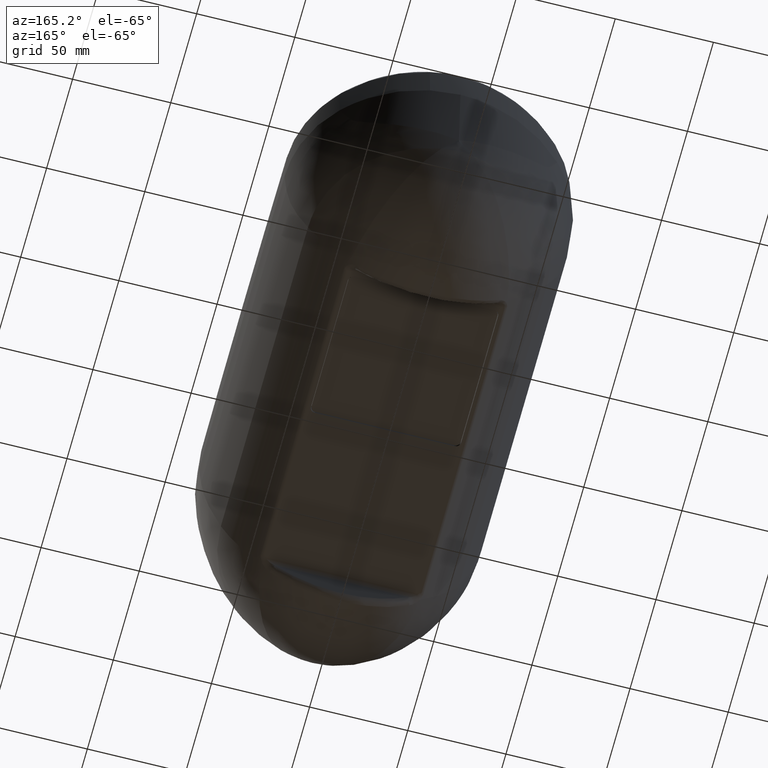
[diagram: clean part render]
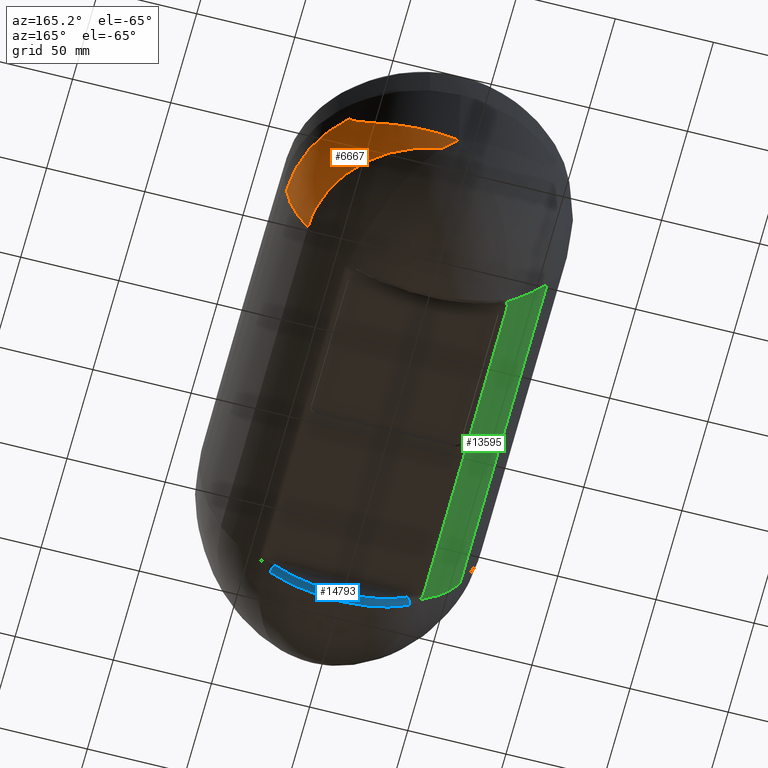
[diagram: same view with three faces highlighted in distinct colors, each labeled with its STEP entity id]
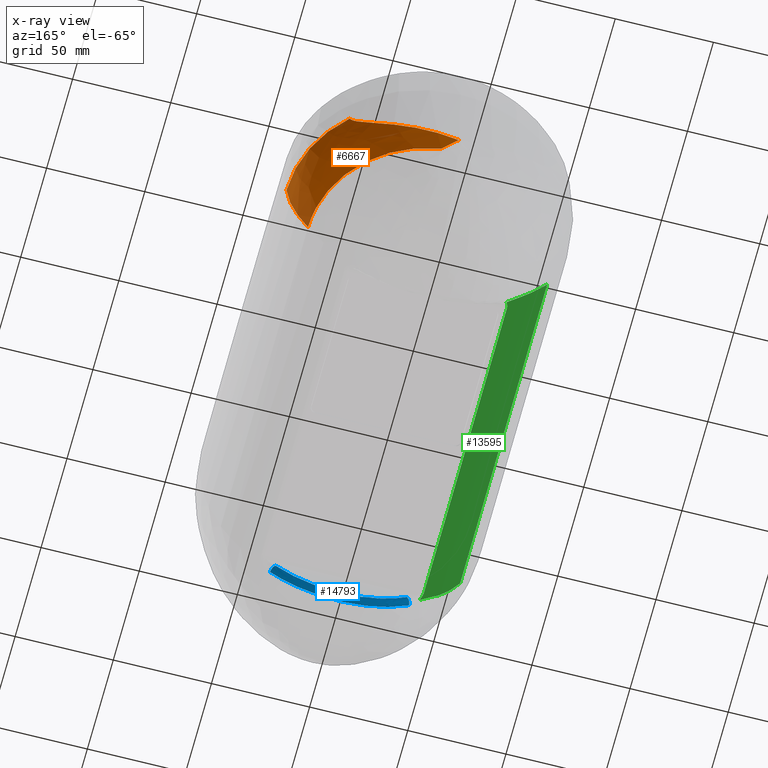
[diagram: x-ray of the same camera — body ghosted, the three highlighted faces saturated]
A machine part, auxiliary view with three faces highlighted in distinct colors.
The next image is the same camera in x-ray (body ghosted, the three faces saturated) — at least one of them is partly hidden behind the body in this view.
Their STEP definitions:

[orange] entity #6667 — the highlighted face is a freeform B-spline surface patch.
#57 = ORIENTED_EDGE ( 'NONE', *, *, #7047, .F. ) ;
#116 = CARTESIAN_POINT ( 'NONE',  ( 17.16873450220270314, 186.2799051753655988, 137.8136529224938158 ) ) ;
#161 = CARTESIAN_POINT ( 'NONE',  ( 36.70021876913366299, 179.5746285073579998, 147.9090190939486149 ) ) ;
#196 = CARTESIAN_POINT ( 'NONE',  ( 71.00981022925452635, 153.3797388543216300, 157.2913176730718305 ) ) ;
#232 = CARTESIAN_POINT ( 'NONE',  ( 46.66650541397430629, 173.7796728239736979, 156.4335529356362429 ) ) ;
#267 = EDGE_CURVE ( 'Defeatured_1_84+Defeatured_1_100+Defeatured_1_99+Defeatured_1_74', #14445, #1055, #5720, .T. ) ;
#272 = CARTESIAN_POINT ( 'NONE',  ( 68.41909123160129980, 158.7746011376136153, 143.1931750610074232 ) ) ;
#307 = CARTESIAN_POINT ( 'NONE',  ( 42.23678981249864250, 176.5808792356348818, 152.0722204217961178 ) ) ;
#390 = CARTESIAN_POINT ( 'NONE',  ( 29.92775204060822247, 182.5243047347703396, 143.8519228116678619 ) ) ;
#467 = CARTESIAN_POINT ( 'NONE',  ( 44.11680217149687877, 175.4378795127589115, 153.7552431653306257 ) ) ;
#560 = CARTESIAN_POINT ( 'NONE',  ( 71.41486747657643264, 152.7488802706376418, 162.8081446720686642 ) ) ;
#716 = CARTESIAN_POINT ( 'NONE',  ( -12.83763338975929535, 186.5459522770986780, 128.1975425206302361 ) ) ;
#884 = CARTESIAN_POINT ( 'NONE',  ( 30.65049512550690736, 193.4459985625936724, 80.18633820112415833 ) ) ;
#946 = CARTESIAN_POINT ( 'NONE',  ( 31.60542280530669856, 177.2716351799642212, 121.7888148081207049 ) ) ;
#1024 = CARTESIAN_POINT ( 'NONE',  ( 46.60434217390933753, 164.8864296971247825, 121.7888148081206623 ) ) ;
#1055 = VERTEX_POINT ( 'NONE', #3271 ) ;
#1223 = CARTESIAN_POINT ( 'NONE',  ( 55.17201272812041424, 177.7803704335496207, 110.6015968472861317 ) ) ;
#1271 = CARTESIAN_POINT ( 'NONE',  ( 67.51844482555469540, 126.3546650136966321, 139.8697258902579961 ) ) ;
#1382 = CARTESIAN_POINT ( 'NONE',  ( 42.53414097025761009, 176.4328875310787055, 152.2376426859413243 ) ) ;
#1426 = CARTESIAN_POINT ( 'NONE',  ( 36.24982020219461276, 179.7940500178897310, 147.6107850392372995 ) ) ;
#1432 = EDGE_CURVE ( 'Defeatured_1_100+Defeatured_1_116+Defeatured_1_115+Defeatured_1_101', #3995, #10713, #14293, .T. ) ;
#1469 = CARTESIAN_POINT ( 'NONE',  ( 60.59804321438010533, 127.4619682899466255, 121.0036763598181011 ) ) ;
#1507 = CARTESIAN_POINT ( 'NONE',  ( 38.37452600336997932, 178.7293576063037506, 149.0621185474327319 ) ) ;
#1580 = CARTESIAN_POINT ( 'NONE',  ( 31.15940167186639798, 182.0434200034016783, 144.5305158333349027 ) ) ;
#1586 = CARTESIAN_POINT ( 'NONE',  ( 60.90865058192770221, 127.4143489423889832, 121.7888176859384828 ) ) ;
#1606 = CARTESIAN_POINT ( 'NONE',  ( 8.320621799689327247, 185.5843390837591187, 121.7888148054847193 ) ) ;
#1660 = CARTESIAN_POINT ( 'NONE',  ( 44.95418670616069079, 174.9046028474916170, 154.5821769349290093 ) ) ;
#1735 = CARTESIAN_POINT ( 'NONE',  ( 36.33687048818266874, 179.7518738740454864, 147.6680919923057616 ) ) ;
#1899 = CARTESIAN_POINT ( 'NONE',  ( 15.91960415757791303, 186.4363209183683239, 137.3597427010759304 ) ) ;
#2237 = CARTESIAN_POINT ( 'NONE',  ( 49.97279135077221923, 171.4740396511940901, 161.2613077493166998 ) ) ;
#2435 = CARTESIAN_POINT ( 'NONE',  ( 24.09854339635410270, 184.5750922347506275, 140.8493777575535262 ) ) ;
#2510 = CARTESIAN_POINT ( 'NONE',  ( 47.17425260179511071, 184.8444342467676336, 98.66499806114813964 ) ) ;
#2547 = CARTESIAN_POINT ( 'NONE',  ( 49.85670447880540479, 171.5562556043261111, 161.0367054651206900 ) ) ;
#2585 = CARTESIAN_POINT ( 'NONE',  ( 50.07989175095790557, 171.3609533482236316, 160.6976552370627473 ) ) ;
#2626 = CARTESIAN_POINT ( 'NONE',  ( 47.60626693753315664, 173.1380599944269534, 157.5977527918207102 ) ) ;
#2665 = CARTESIAN_POINT ( 'NONE',  ( 59.14814502988840417, 127.6159246056106298, 117.9992292698871097 ) ) ;
#2705 = CARTESIAN_POINT ( 'NONE',  ( 42.44137863883254624, 176.4595804056256156, 152.2472789105979984 ) ) ;
#2731 = CARTESIAN_POINT ( 'NONE',  ( 7.333249146439835185E-14, 187.7030265861296812, 131.8029745790232994 ) ) ;
#2738 = CARTESIAN_POINT ( 'NONE',  ( 65.88452917163719746, 163.4453716614846712, 134.1986593037555906 ) ) ;
#2777 = CARTESIAN_POINT ( 'NONE',  ( 36.27595809520007464, 179.7813983250437957, 147.6279747240785412 ) ) ;
#2854 = CARTESIAN_POINT ( 'NONE',  ( 29.79430476489588386, 182.5749923893351365, 143.7796626385284924 ) ) ;
#2938 = CARTESIAN_POINT ( 'NONE',  ( 48.59397052819300455, 172.4500157227422221, 158.9527786816373691 ) ) ;
#3171 = CARTESIAN_POINT ( 'NONE',  ( 7.333249146439835185E-14, 187.7030265861296812, 131.8029745790232994 ) ) ;
#3245 = CARTESIAN_POINT ( 'NONE',  ( 15.38105624700196650, 186.5322553331858160, 137.1458124560444674 ) ) ;
#3254 = CARTESIAN_POINT ( 'NONE',  ( 50.99062218225788712, 159.2300508401498860, 121.7888148081205628 ) ) ;
#3271 = CARTESIAN_POINT ( 'NONE',  ( 8.320621799689327247, 185.5843390837591187, 121.7888148054847193 ) ) ;
#3323 = CARTESIAN_POINT ( 'NONE',  ( 15.63000786043264689, 186.4883171468318039, 137.2444795490099239 ) ) ;
#3330 = CARTESIAN_POINT ( 'NONE',  ( 17.02439258178445414, 183.6416153815463304, 121.7888148081206481 ) ) ;
#3420 = CARTESIAN_POINT ( 'NONE',  ( 49.59015991239924404, 171.7453340079843258, 160.5511880585132189 ) ) ;
#3429 = CARTESIAN_POINT ( 'NONE',  ( 71.42857142857123165, 125.6666049739822739, 162.9999999999949978 ) ) ;
#3697 = CARTESIAN_POINT ( 'NONE',  ( 27.29194627442340249, 183.5415140037296737, 142.4092439265871235 ) ) ;
#3736 = CARTESIAN_POINT ( 'NONE',  ( 50.73208579701179843, 170.9409819235802956, 162.9152390018462597 ) ) ;
#3803 = CARTESIAN_POINT ( 'NONE',  ( 48.55830336586237195, 172.4750887771693044, 158.9006230407084956 ) ) ;
#3880 = CARTESIAN_POINT ( 'NONE',  ( 45.04770409560386923, 174.8444715272655117, 154.6770085291250609 ) ) ;
#3919 = CARTESIAN_POINT ( 'NONE',  ( 13.43236609899430611, 186.9522743776976483, 136.3377415382447282 ) ) ;
#3961 = CARTESIAN_POINT ( 'NONE',  ( 44.99787507170157141, 174.8765284200966619, 154.6264063535724915 ) ) ;
#3995 = VERTEX_POINT ( 'NONE', #12022 ) ;
#4030 = CARTESIAN_POINT ( 'NONE',  ( 48.20665157576791415, 172.7217222970899684, 158.3975876959782454 ) ) ;
#4107 = CARTESIAN_POINT ( 'NONE',  ( 29.69869708855287271, 182.6111609331265981, 143.7280191964380833 ) ) ;
#4119 = CARTESIAN_POINT ( 'NONE',  ( 61.25489697169749093, 127.3739163240166476, 122.5466733300846869 ) ) ;
#4678 = CARTESIAN_POINT ( 'NONE',  ( 58.05657435785962406, 144.9640745294581734, 121.7888148081205628 ) ) ;
#4757 = CARTESIAN_POINT ( 'NONE',  ( 10.08256595400358613, 185.3067648900206734, 121.7888148081206054 ) ) ;
#4827 = DIRECTION ( 'NONE',  ( -0.9974586998307348740, 0.0000000000000000000, 0.07124704998791103749 ) ) ;
#4850 = CARTESIAN_POINT ( 'NONE',  ( 71.42857142857123165, 125.6666049739822739, 162.9999999999949978 ) ) ;
#4983 = EDGE_CURVE ( 'Defeatured_1_100+Defeatured_1_101+Defeatured_1_116+Defeatured_1_85', #10713, #12688, #9026, .T. ) ;
#4999 = CARTESIAN_POINT ( 'NONE',  ( 37.17902757184661766, 179.3380844048657536, 148.2308479818809701 ) ) ;
#5034 = CARTESIAN_POINT ( 'NONE',  ( 67.67950341839531347, 160.2174122902346767, 140.2554148641884524 ) ) ;
#5073 = CARTESIAN_POINT ( 'NONE',  ( 48.63464813290100608, 172.4214054275098249, 159.0125615376302619 ) ) ;
#5153 = CARTESIAN_POINT ( 'NONE',  ( 37.58116637253532133, 179.1351483010918457, 148.5075628739639626 ) ) ;
#5230 = CARTESIAN_POINT ( 'NONE',  ( 29.72740571489134354, 182.6003137891588324, 143.7435148765300141 ) ) ;
#5307 = CARTESIAN_POINT ( 'NONE',  ( 36.23238769775648649, 179.8024841076845064, 147.5993260120747834 ) ) ;
#5400 = CARTESIAN_POINT ( 'NONE',  ( 47.77235304804080585, 173.1347374335826146, 157.2876921142403148 ) ) ;
#5696 = CARTESIAN_POINT ( 'NONE',  ( 21.71979212434760953, 185.1620988758757846, 139.8050787990402739 ) ) ;
#5720 = B_SPLINE_CURVE_WITH_KNOTS ( 'NONE', 3,
 ( #2731, #9901, #14732, #1606 ),
 .UNSPECIFIED., .F., .F.,
 ( 4, 4 ),
 ( 0.0000000000000000000, 0.1715839672696508056 ),
 .UNSPECIFIED. ) ;
#5776 = CARTESIAN_POINT ( 'NONE',  ( 57.46544466909824678, 146.6499654445194381, 121.7888148081205912 ) ) ;
#5870 = CARTESIAN_POINT ( 'NONE',  ( 49.25769430435477858, 171.9812671709381675, 159.9787832175579183 ) ) ;
#6024 = CARTESIAN_POINT ( 'NONE',  ( 8.320621799689327247, 185.5843390837591187, 121.7888148054847193 ) ) ;
#6070 = CARTESIAN_POINT ( 'NONE',  ( 33.13404088627580535, 181.2881622665116481, 145.6057532075287213 ) ) ;
#6145 = CARTESIAN_POINT ( 'NONE',  ( 44.54910410794700937, 127.6185406703086471, 95.50196552895609159 ) ) ;
#6230 = CARTESIAN_POINT ( 'NONE',  ( 40.48965932227040554, 177.6348567825116334, 150.5652163402212409 ) ) ;
#6267 = CARTESIAN_POINT ( 'NONE',  ( 32.02829301122999794, 181.6913828338914811, 145.0212240322242110 ) ) ;
#6307 = CARTESIAN_POINT ( 'NONE',  ( 56.00180937430951644, 127.8449498914186506, 112.1190389907761045 ) ) ;
#6348 = CARTESIAN_POINT ( 'NONE',  ( 47.45307846892482928, 173.2433850252533603, 157.4018865357355139 ) ) ;
#6421 = CARTESIAN_POINT ( 'NONE',  ( 44.96218855732081465, 174.8994630048732120, 154.5902685028248413 ) ) ;
#6500 = CARTESIAN_POINT ( 'NONE',  ( 35.25342314504954544, 180.2756873835429303, 146.9564337515907368 ) ) ;
#6574 = CARTESIAN_POINT ( 'NONE',  ( 45.14689645194145839, 174.7805404929574422, 154.7782452335213748 ) ) ;
#6593 = CARTESIAN_POINT ( 'NONE',  ( 50.66032537606570685, 127.9470659582256360, 103.6190837426011058 ) ) ;
#6613 = ORIENTED_EDGE ( 'NONE', *, *, #267, .F. ) ;
#6667 = ADVANCED_FACE ( 'Defeatured_1_100', ( #7340 ), #13027, .T. ) ;
#6736 = ORIENTED_EDGE ( 'NONE', *, *, #4983, .T. ) ;
#6742 = CARTESIAN_POINT ( 'NONE',  ( 15.35827923907807602, 186.5362408837727912, 137.1368041230658150 ) ) ;
#7047 = EDGE_CURVE ( 'Defeatured_1_115+Defeatured_1_100+Defeatured_1_116+Defeatured_1_99', #3995, #14445, #11240, .T. ) ;
#7214 = CARTESIAN_POINT ( 'NONE',  ( 57.15092397474712271, 147.4830621802008466, 121.7888148081206481 ) ) ;
#7266 = CARTESIAN_POINT ( 'NONE',  ( 39.90406387601041160, 189.4935852546356045, 89.74389981772009151 ) ) ;
#7310 = CARTESIAN_POINT ( 'NONE',  ( 69.89674611601769527, 125.8672935264826265, 149.6017762305458234 ) ) ;
#7340 = FACE_OUTER_BOUND ( 'NONE', #13782, .T. ) ;
#7378 = CARTESIAN_POINT ( 'NONE',  ( 49.71498708835147795, 171.6567654850285010, 160.7751381265503881 ) ) ;
#7416 = CARTESIAN_POINT ( 'NONE',  ( 69.89674611601769527, 125.8672935264826265, 149.6017762305458234 ) ) ;
#7462 = CARTESIAN_POINT ( 'NONE',  ( 47.44017607586149410, 173.2522411284294321, 157.3855062366996833 ) ) ;
#7539 = CARTESIAN_POINT ( 'NONE',  ( 42.33153027045825212, 176.5247926312507900, 152.1530872606254547 ) ) ;
#7613 = CARTESIAN_POINT ( 'NONE',  ( 48.87339494457030753, 172.2531716612204491, 159.3702697794027472 ) ) ;
#7694 = CARTESIAN_POINT ( 'NONE',  ( 47.43302219181757806, 173.2571502080473920, 157.3764338411962456 ) ) ;
#7777 = CARTESIAN_POINT ( 'NONE',  ( 36.45839135068534631, 179.6928102155401348, 147.7483585025289301 ) ) ;
#7924 = CARTESIAN_POINT ( 'NONE',  ( 17.95782077442126834, 186.0395845241623647, 138.1883872790900796 ) ) ;
#8168 = CARTESIAN_POINT ( 'NONE',  ( 15.42259030424184907, 186.5249690456952010, 137.1622494189592203 ) ) ;
#8273 = CARTESIAN_POINT ( 'NONE',  ( 49.57962337903342132, 171.7528107670858049, 160.5325355825875704 ) ) ;
#8338 = CARTESIAN_POINT ( 'NONE',  ( 15.31653920171187977, 184.1245451477899735, 121.7888148081205344 ) ) ;
#8543 = CARTESIAN_POINT ( 'NONE',  ( 1.112362122112645402, 187.8513583469206480, 132.0977994787148475 ) ) ;
#8579 = CARTESIAN_POINT ( 'NONE',  ( 50.33840317934961917, 171.2159718791400280, 162.0115718070729258 ) ) ;
#8619 = CARTESIAN_POINT ( 'NONE',  ( 51.14620054612350941, 170.6632551813156056, 164.1283507020978050 ) ) ;
#8662 = CARTESIAN_POINT ( 'NONE',  ( 48.38457707577247646, 172.5971733405503414, 158.6473731521189166 ) ) ;
#8698 = CARTESIAN_POINT ( 'NONE',  ( 64.81582631037731801, 165.2482622896216071, 131.0585790966005106 ) ) ;
#8740 = CARTESIAN_POINT ( 'NONE',  ( 48.56476090369297793, 172.4705502033403661, 158.9100480898729018 ) ) ;
#8822 = CARTESIAN_POINT ( 'NONE',  ( 48.71524244496419698, 172.3646731393792209, 159.1319860778025088 ) ) ;
#8894 = CARTESIAN_POINT ( 'NONE',  ( 44.54494152333062829, 175.1674017694346333, 154.1686501883742721 ) ) ;
#8974 = CARTESIAN_POINT ( 'NONE',  ( 47.47240324845135007, 173.2301174585445551, 157.4264447536860132 ) ) ;
#9026 = B_SPLINE_CURVE_WITH_KNOTS ( 'NONE', 3,
 ( #3429, #9722, #7310, #1271, #11871, #11207, #11135, #11363, #4119, #1586 ),
 .UNSPECIFIED., .F., .F.,
 ( 4, 2, 2, 2, 4 ),
 ( 0.0000000000000000000, 0.2515006295357943289, 0.3772509443036915489, 0.5030012590715886578, 0.5343711062231838449 ),
 .UNSPECIFIED. ) ;
#9137 = CARTESIAN_POINT ( 'NONE',  ( 5.389253985391023072, 187.8179271703508277, 133.4497354674256258 ) ) ;
#9312 = CARTESIAN_POINT ( 'NONE',  ( 34.64916115007592623, 175.3745398576801335, 121.7888148081205770 ) ) ;
#9381 = CARTESIAN_POINT ( 'NONE',  ( 11.58104943872571546, 125.6666049734167245, 167.2748229992737663 ) ) ;
#9389 = CARTESIAN_POINT ( 'NONE',  ( 7.333249146439835185E-14, 187.7030265861296812, 131.8029745790232994 ) ) ;
#9451 = CARTESIAN_POINT ( 'NONE',  ( 60.90865058192770221, 127.4143489423889832, 121.7888176859384828 ) ) ;
#9543 = CARTESIAN_POINT ( 'NONE',  ( 55.48567614315565066, 151.6004114551206783, 121.7888148081207191 ) ) ;
#9626 = CARTESIAN_POINT ( 'NONE',  ( 59.52982061571764660, 139.7942731488212189, 121.7888148081206197 ) ) ;
#9640 = ORIENTED_EDGE ( 'NONE', *, *, #12918, .F. ) ;
#9722 = CARTESIAN_POINT ( 'NONE',  ( 70.94436141951059938, 125.6425330173845936, 156.2210598731479081 ) ) ;
#9752 = CARTESIAN_POINT ( 'NONE',  ( 35.79168534232671561, 180.0625976381126350, 147.2494037136869451 ) ) ;
#9870 = CARTESIAN_POINT ( 'NONE',  ( 34.22812952637918471, 180.7478049812010852, 146.3169786827609471 ) ) ;
#9901 = CARTESIAN_POINT ( 'NONE',  ( 2.786728205908099110, 187.4733793705974279, 128.5224723736782266 ) ) ;
#9912 = CARTESIAN_POINT ( 'NONE',  ( 64.45717302571880225, 126.9216870391166339, 130.2969368327252937 ) ) ;
#9949 = CARTESIAN_POINT ( 'NONE',  ( 44.97646982654708125, 174.8902865783637708, 154.6047231796659673 ) ) ;
#9988 = CARTESIAN_POINT ( 'NONE',  ( 54.30538898138550508, 127.9202771792916309, 109.2433129450401026 ) ) ;
#10031 = CARTESIAN_POINT ( 'NONE',  ( 42.25261386737962965, 176.5715204786361596, 152.0857058367066941 ) ) ;
#10108 = CARTESIAN_POINT ( 'NONE',  ( 48.57645564361937573, 172.4623294621588343, 158.9271423414444087 ) ) ;
#10176 = CARTESIAN_POINT ( 'NONE',  ( 32.59068684728737963, 181.4555537227965090, 145.3465656648918127 ) ) ;
#10272 = ORIENTED_EDGE ( 'NONE', *, *, #1432, .T. ) ;
#10274 = CARTESIAN_POINT ( 'NONE',  ( 67.51844482555469540, 126.3546650136966321, 139.8697258902579961 ) ) ;
#10713 = VERTEX_POINT ( 'NONE', #4850 ) ;
#10725 = CARTESIAN_POINT ( 'NONE',  ( 32.37522912398689812, 176.8087690273798387, 121.7888148081206339 ) ) ;
#10812 = CARTESIAN_POINT ( 'NONE',  ( 60.55805325933997807, 134.5546111918678491, 121.7888148081205628 ) ) ;
#10888 = CARTESIAN_POINT ( 'NONE',  ( 29.27386520409706705, 178.5860138788926577, 121.7888148081205628 ) ) ;
#10934 = CARTESIAN_POINT ( 'NONE',  ( 5.404108163809045351, 187.7369510837076518, 133.4798682755353241 ) ) ;
#11014 = CARTESIAN_POINT ( 'NONE',  ( 66.59019043919519731, 126.5413248899736089, 136.6586028727713256 ) ) ;
#11093 = CARTESIAN_POINT ( 'NONE',  ( 71.42857142857140218, 125.6666049734165824, 162.9999999999990052 ) ) ;
#11130 = CARTESIAN_POINT ( 'NONE',  ( 46.04704550520542483, 174.1921500333493213, 155.7351867054905199 ) ) ;
#11135 = CARTESIAN_POINT ( 'NONE',  ( 63.25052481418590133, 127.1153274453266420, 127.1458436500381168 ) ) ;
#11164 = CARTESIAN_POINT ( 'NONE',  ( 57.25559231260780990, 175.4963531510216512, 114.2739237200841131 ) ) ;
#11201 = CARTESIAN_POINT ( 'NONE',  ( 36.22245621288879391, 179.8072866222074992, 147.5928012103275364 ) ) ;
#11207 = CARTESIAN_POINT ( 'NONE',  ( 64.45717302571880225, 126.9216870391166339, 130.2969368327252937 ) ) ;
#11240 = B_SPLINE_CURVE_WITH_KNOTS ( 'NONE', 3,
 ( #14552, #14629, #3736, #8579, #13442, #2237, #2547, #7378, #12255, #14321, #3420, #8273, #13132, #11939, #5870, #15586, #7613, #8822, #5073, #2938, #10108, #8740, #3803, #8662, #4030, #14852, #13513, #2626, #12332, #8974, #6348, #7462, #7694, #14703, #232, #11130, #12564, #13597, #6574, #3880, #3961, #9949, #6421, #1660, #8894, #467, #14772, #13746, #12482, #2705, #7539, #12409, #10031, #307, #12639, #11356, #13667, #14924, #1507, #5153, #4999, #161, #7777, #1735, #2777, #1426, #5307, #11201, #6500, #9870, #10176, #6267, #1580, #14996, #11283, #390, #2854, #5230, #4107, #13828, #14144, #14219, #12797, #5696, #12877, #14059, #7924, #12715, #11599, #1899, #3323, #15236, #8168, #3245, #6742, #15319, #9137, #3171 ),
 .UNSPECIFIED., .F., .F.,
 ( 4, 2, 2, 1, 1, 1, 1, 2, 2, 2, 1, 1, 1, 1, 2, 2, 2, 1, 1, 1, 1, 2, 2, 2, 1, 1, 1, 1, 1, 2, 2, 2, 1, 1, 1, 1, 1, 2, 2, 2, 2, 1, 1, 1, 1, 1, 2, 2, 2, 2, 1, 1, 1, 1, 1, 2, 2, 2, 2, 2, 1, 1, 1, 1, 2, 2, 4 ),
 ( 0.0000000000000000000, 0.03125000000000555112, 0.04687500000000787564, 0.05468750000000851402, 0.05859375000000895811, 0.06054687500000944383, 0.06152343750000968670, 0.06201171875000973527, 0.06250000000000978384, 0.07812500000000124900, 0.08593749999999777955, 0.08984374999999661382, 0.09179687499999578115, 0.09277343749999565625, 0.09326171874999583666, 0.09374999999999600320, 0.1093749999999709399, 0.1171874999999579364, 0.1210937499999512196, 0.1230468749999471811, 0.1240234374999447248, 0.1245117187499442668, 0.1249999999999437950, 0.1562499999999536204, 0.1718749999999580891, 0.1796874999999605871, 0.1835937499999620859, 0.1855468749999628075, 0.1865234374999624467, 0.1870117187499622524, 0.1874999999999620581, 0.2187499999999547862, 0.2343749999999514277, 0.2421874999999493738, 0.2460937499999482081, 0.2480468749999472644, 0.2490234374999471811, 0.2495117187499470146, 0.2499999999999468481, 0.3124999999999322764, 0.3437499999999250044, 0.3593749999999207856, 0.3671874999999193423, 0.3710937499999187317, 0.3730468749999180655, 0.3740234374999176770, 0.3745117187499174549, 0.3749999999999172884, 0.4374999999999690248, 0.4687499999999946709, 0.4843750000000079936, 0.4921875000000149325, 0.4960937500000187073, 0.4980468750000206501, 0.4990234375000218714, 0.4995117187500219824, 0.5000000000000220934, 0.6249999999999859002, 0.6874999999999674705, 0.7187499999999583666, 0.7343749999999539257, 0.7421874999999519273, 0.7460937499999509281, 0.7480468749999502620, 0.7490234374999500400, 0.7499999999999499289, 1.000000000000000000 ),
 .UNSPECIFIED. ) ;
#11244 = AXIS2_PLACEMENT_3D ( 'NONE', #9381, #13194, #4827 ) ;
#11283 = CARTESIAN_POINT ( 'NONE',  ( 30.19324454257600010, 182.4227558616601073, 143.9963013450465041 ) ) ;
#11356 = CARTESIAN_POINT ( 'NONE',  ( 41.33227902803047726, 177.1154275666830813, 151.3023274098717366 ) ) ;
#11363 = CARTESIAN_POINT ( 'NONE',  ( 61.59343815313383885, 127.3318846194980409, 123.3086432384239259 ) ) ;
#11455 = CARTESIAN_POINT ( 'NONE',  ( -8.055865640240494230, 187.2538948935716689, 129.4425612363292544 ) ) ;
#11599 = CARTESIAN_POINT ( 'NONE',  ( 16.49604968054320508, 186.3299753397031679, 137.5907576214919459 ) ) ;
#11851 = CARTESIAN_POINT ( 'NONE',  ( 40.35430993419052470, 171.1499784477668413, 121.7888148081205628 ) ) ;
#11871 = CARTESIAN_POINT ( 'NONE',  ( 66.59019043919519731, 126.5413248899736089, 136.6586028727713256 ) ) ;
#11927 = CARTESIAN_POINT ( 'NONE',  ( 11.84872771158779337, 184.9568774892029808, 121.7888148081205770 ) ) ;
#11939 = CARTESIAN_POINT ( 'NONE',  ( 49.41785434480624417, 171.8676043028438585, 160.2472091571501380 ) ) ;
#12007 = CARTESIAN_POINT ( 'NONE',  ( 59.10278490336092005, 141.5281082812221882, 121.7888148081206339 ) ) ;
#12022 = CARTESIAN_POINT ( 'NONE',  ( 51.14620054612323941, 170.6632551813155487, 164.1283507020977765 ) ) ;
#12143 = CARTESIAN_POINT ( 'NONE',  ( 63.25052481418590133, 127.1153274453266420, 127.1458436500381168 ) ) ;
#12213 = CARTESIAN_POINT ( 'NONE',  ( 42.37802323590721443, 127.3885538846926408, 92.93846549772410981 ) ) ;
#12255 = CARTESIAN_POINT ( 'NONE',  ( 49.64255028243015744, 171.7081589036503999, 160.6444722752199539 ) ) ;
#12293 = CARTESIAN_POINT ( 'NONE',  ( 70.24465998701199965, 155.0933312293755648, 151.7332072851049531 ) ) ;
#12332 = CARTESIAN_POINT ( 'NONE',  ( 47.51729285881210529, 173.1992760989745648, 157.4836616354507726 ) ) ;
#12369 = CARTESIAN_POINT ( 'NONE',  ( 60.79775363323240356, 171.1626057194825705, 121.2645210896261148 ) ) ;
#12409 = CARTESIAN_POINT ( 'NONE',  ( 42.27633021313891248, 176.5574887109950737, 152.1059295421922855 ) ) ;
#12447 = CARTESIAN_POINT ( 'NONE',  ( 50.15260285291000741, 182.4461610913456298, 102.8137544521511018 ) ) ;
#12482 = CARTESIAN_POINT ( 'NONE',  ( 42.65887306433747028, 176.3298843473435511, 152.4351664575756047 ) ) ;
#12564 = CARTESIAN_POINT ( 'NONE',  ( 45.72907118507820456, 174.4021717033298842, 155.3865643329210116 ) ) ;
#12639 = CARTESIAN_POINT ( 'NONE',  ( 42.22788872842743757, 176.5861413601398624, 152.0646399903084784 ) ) ;
#12688 = VERTEX_POINT ( 'NONE', #13393 ) ;
#12715 = CARTESIAN_POINT ( 'NONE',  ( 16.98542016698340618, 186.2348668220962793, 137.7896025310035952 ) ) ;
#12797 = CARTESIAN_POINT ( 'NONE',  ( 25.30102597029447509, 184.1670747655010985, 141.4507298878273502 ) ) ;
#12877 = CARTESIAN_POINT ( 'NONE',  ( 20.49144198479267587, 185.4732028493608880, 139.2619174490875764 ) ) ;
#12918 = EDGE_CURVE ( 'Defeatured_1_85+Defeatured_1_100+Defeatured_1_74+Defeatured_1_86', #1055, #12688, #14940, .T. ) ;
#12961 = CARTESIAN_POINT ( 'NONE',  ( 60.90868392404704679, 131.0109760989092251, 121.7888148081206481 ) ) ;
#12975 = CARTESIAN_POINT ( 'NONE',  ( -17.76458301565339326, 185.3034061309546701, 127.0470198292941149 ) ) ;
#13027 =( BOUNDED_SURFACE ( )  B_SPLINE_SURFACE ( 3, 2, ( 
 ( #11093, #560, #8619 ),
 ( #14739, #196, #2585 ),
 ( #7416, #12293, #5400 ),
 ( #10274, #272, #1382 ),
 ( #11014, #5034, #6230 ),
 ( #9912, #2738, #9752 ),
 ( #12143, #8698, #6070 ),
 ( #1469, #13552, #3697 ),
 ( #2665, #12369, #2435 ),
 ( #6307, #11164, #116 ),
 ( #9988, #1223, #3919 ),
 ( #6593, #12447, #10934 ),
 ( #14590, #2510, #8543 ),
 ( #6145, #7266, #11455 ),
 ( #12213, #15256, #716 ),
 ( #15501, #884, #12975 ) ),
 .UNSPECIFIED., .F., .F., .F. ) 
 B_SPLINE_SURFACE_WITH_KNOTS ( ( 4, 2, 2, 2, 2, 2, 2, 4 ),
 ( 3, 3 ),
 ( 0.0000000000000000000, 0.2500000000000000000, 0.3750000000000000000, 0.5000000000000000000, 0.6250000000000000000, 0.7500000000000000000, 0.8750000000000000000, 1.000000000000000000 ),
 ( 0.0000000000000000000, 1.000000000000000000 ),
 .UNSPECIFIED. ) 
 GEOMETRIC_REPRESENTATION_ITEM ( )  RATIONAL_B_SPLINE_SURFACE ( (
 ( 1.000000000000000000, 0.9114493085704780118, 1.000000000000000000),
 ( 1.000000000000000000, 0.9077723167509239577, 1.000000000000000000),
 ( 1.000000000000000000, 0.8989471047261099468, 1.000000000000000000),
 ( 1.000000000000000000, 0.8787564360949460252, 1.000000000000000000),
 ( 1.000000000000000000, 0.8708633762317450344, 1.000000000000000000),
 ( 1.000000000000000000, 0.8528193201276059732, 1.000000000000000000),
 ( 1.000000000000000000, 0.8426527738148840152, 1.000000000000000000),
 ( 1.000000000000000000, 0.8205255037794220163, 1.000000000000000000),
 ( 1.000000000000000000, 0.8085293876270569502, 1.000000000000000000),
 ( 1.000000000000000000, 0.7828744421357920480, 1.000000000000000000),
 ( 1.000000000000000000, 0.7692144249613509510, 1.000000000000000000),
 ( 1.000000000000000000, 0.7404585064003720296, 1.000000000000000000),
 ( 1.000000000000000000, 0.7253610393099210185, 1.000000000000000000),
 ( 1.000000000000000000, 0.6940242223807110422, 1.000000000000000000),
 ( 1.000000000000000000, 0.6781158737509359602, 1.000000000000000000),
 ( 1.000000000000000000, 0.6623369879177010144, 1.000000000000000000) ) ) 
 REPRESENTATION_ITEM ( '' )  SURFACE ( )  );
#13036 = CARTESIAN_POINT ( 'NONE',  ( 36.11353267821158397, 174.3608670707387489, 121.7888148081205628 ) ) ;
#13132 = CARTESIAN_POINT ( 'NONE',  ( 49.57378367287032006, 171.7569546815545891, 160.5222188484561059 ) ) ;
#13194 = DIRECTION ( 'NONE',  ( -0.07124525315353251453, -0.007102035523964675065, -0.9974335441494364130 ) ) ;
#13197 = CARTESIAN_POINT ( 'NONE',  ( 47.76018040026227141, 163.5287136386105544, 121.7888148081206054 ) ) ;
#13274 = CARTESIAN_POINT ( 'NONE',  ( 49.96145358524513824, 160.6901716297154508, 121.7888148081206481 ) ) ;
#13393 = CARTESIAN_POINT ( 'NONE',  ( 60.90865058192770221, 127.4143489423889832, 121.7888176859384828 ) ) ;
#13442 = CARTESIAN_POINT ( 'NONE',  ( 50.19784991116143402, 171.3149356563567380, 161.7110422823534464 ) ) ;
#13513 = CARTESIAN_POINT ( 'NONE',  ( 47.78100267780794042, 173.0175055746416888, 157.8245638835856823 ) ) ;
#13552 = CARTESIAN_POINT ( 'NONE',  ( 62.28235762379159723, 169.0952721985385665, 124.6080820244811349 ) ) ;
#13597 = CARTESIAN_POINT ( 'NONE',  ( 45.34342240184212613, 174.6534161588481879, 154.9808475849355318 ) ) ;
#13667 = CARTESIAN_POINT ( 'NONE',  ( 40.38914332412177544, 177.6505342682665400, 150.5512654539032553 ) ) ;
#13746 = CARTESIAN_POINT ( 'NONE',  ( 43.08508996627536192, 176.0734742988247206, 152.8089537499418782 ) ) ;
#13782 = EDGE_LOOP ( 'NONE', ( #9640, #6613, #57, #10272, #6736 ) ) ;
#13828 = CARTESIAN_POINT ( 'NONE',  ( 29.67954964584474098, 182.6183912682368202, 143.7176879031903525 ) ) ;
#14059 = CARTESIAN_POINT ( 'NONE',  ( 18.59763252196630390, 185.9026433354336234, 138.4557036347361532 ) ) ;
#14144 = CARTESIAN_POINT ( 'NONE',  ( 29.66863409817853636, 182.6225104084198563, 143.7118006013184868 ) ) ;
#14152 = CARTESIAN_POINT ( 'NONE',  ( 25.33133443252458861, 180.6315942817273310, 121.7888148081206197 ) ) ;
#14219 = CARTESIAN_POINT ( 'NONE',  ( 27.54981464172076144, 183.4216645649190696, 142.5693711330117139 ) ) ;
#14293 = CIRCLE ( 'NONE', #11244, 60.00000000000133582 ) ;
#14307 = CARTESIAN_POINT ( 'NONE',  ( 22.07034161650637216, 181.9939344866542967, 121.7888148081206765 ) ) ;
#14321 = CARTESIAN_POINT ( 'NONE',  ( 49.60593641416289046, 171.7341390506997811, 160.5791688866849540 ) ) ;
#14392 = CARTESIAN_POINT ( 'NONE',  ( 58.33371278649747182, 144.1094686496543886, 121.7888148081206197 ) ) ;
#14445 = VERTEX_POINT ( 'NONE', #9389 ) ;
#14468 = CARTESIAN_POINT ( 'NONE',  ( 42.97952062861357803, 168.7841661145579906, 121.7888148081206481 ) ) ;
#14552 = CARTESIAN_POINT ( 'NONE',  ( 51.14620054612323941, 170.6632551813155487, 164.1283507020977765 ) ) ;
#14590 = CARTESIAN_POINT ( 'NONE',  ( 48.71174731261361046, 127.8990050489706363, 100.8705936485471142 ) ) ;
#14629 = CARTESIAN_POINT ( 'NONE',  ( 50.95725747581509779, 170.7868828154307721, 163.5204534958080274 ) ) ;
#14703 = CARTESIAN_POINT ( 'NONE',  ( 47.05749605262970192, 173.5147844058649866, 156.9006251613614609 ) ) ;
#14732 = CARTESIAN_POINT ( 'NONE',  ( 5.572146720079925508, 186.7811883435777247, 125.1485242170222989 ) ) ;
#14739 = CARTESIAN_POINT ( 'NONE',  ( 70.94436141951059938, 125.6425330173845936, 156.2210598731479081 ) ) ;
#14772 = CARTESIAN_POINT ( 'NONE',  ( 43.43550880709007345, 175.8590384611377715, 153.1259189686958564 ) ) ;
#14852 = CARTESIAN_POINT ( 'NONE',  ( 47.92529693863792772, 172.9174307331655598, 158.0166200375320216 ) ) ;
#14924 = CARTESIAN_POINT ( 'NONE',  ( 38.88887403769896167, 178.4589422348254573, 149.4333233004783494 ) ) ;
#14940 = B_SPLINE_CURVE_WITH_KNOTS ( 'NONE', 3,
 ( #6024, #4757, #11927, #8338, #3330, #14307, #14152, #10888, #15732, #946, #10725, #9312, #13036, #11851, #14468, #1024, #13197, #13274, #3254, #15572, #9543, #7214, #5776, #4678, #14392, #12007, #9626, #10812, #12961, #9451 ),
 .UNSPECIFIED., .F., .F.,
 ( 4, 2, 2, 2, 2, 2, 2, 2, 2, 2, 2, 2, 2, 2, 4 ),
 ( 0.02050179316079928094, 0.02580875190112506823, 0.03111571064145085205, 0.04172962812210238848, 0.04438310749226528212, 0.04703658686242818271, 0.05234354560275396306, 0.06295746308340557928, 0.06826442182373138046, 0.07357138056405720938, 0.08418529804470889499, 0.08683877741487187885, 0.08949225678503487658, 0.09479921552536083040, 0.1054131330060128491 ),
 .UNSPECIFIED. ) ;
#14996 = CARTESIAN_POINT ( 'NONE',  ( 30.71863147011087136, 182.2190104425847039, 144.2844879027970535 ) ) ;
#15236 = CARTESIAN_POINT ( 'NONE',  ( 15.48486694000230024, 186.5140182445989865, 137.1869092511393831 ) ) ;
#15256 = CARTESIAN_POINT ( 'NONE',  ( 35.61909556497141693, 191.6911676920125842, 85.03035537635014407 ) ) ;
#15319 = CARTESIAN_POINT ( 'NONE',  ( 10.53143485909726174, 187.3790338012377390, 135.2287742047901133 ) ) ;
#15501 = CARTESIAN_POINT ( 'NONE',  ( 40.14106283106841033, 127.0405968531756429, 90.50606852784109435 ) ) ;
#15572 = CARTESIAN_POINT ( 'NONE',  ( 53.85926584515417659, 154.7414297541068322, 121.7888148081205628 ) ) ;
#15586 = CARTESIAN_POINT ( 'NONE',  ( 49.00377485856344606, 172.1609978198003148, 159.5735413859356981 ) ) ;
#15732 = CARTESIAN_POINT ( 'NONE',  ( 30.05565066147756781, 178.1596748747250558, 121.7888148081206339 ) ) ;

[blue] entity #14793 — the highlighted face is a freeform B-spline surface patch.
#139 = ORIENTED_EDGE ( 'NONE', *, *, #13673, .F. ) ;
#611 = CARTESIAN_POINT ( 'NONE',  ( 23.55484070069720559, -39.58839238739861344, 81.16419337737600870 ) ) ;
#623 = EDGE_CURVE ( 'Defeatured_1_80+Defeatured_1_35+Defeatured_1_36+Defeatured_1_34', #10419, #4917, #4403, .T. ) ;
#663 = CARTESIAN_POINT ( 'NONE',  ( 14.92591153705166995, -39.75024826428141012, 78.07579926686130989 ) ) ;
#673 = CARTESIAN_POINT ( 'NONE',  ( 31.18566242513646003, -42.49708096409617752, 82.70314402562766531 ) ) ;
#749 = CARTESIAN_POINT ( 'NONE',  ( -7.302173027747675071, -42.97801101309083549, 73.52326654175654141 ) ) ;
#980 = CARTESIAN_POINT ( 'NONE',  ( 3.036556305407047240, -39.86407716933042877, 75.90381437060659664 ) ) ;
#1022 = EDGE_CURVE ( 'Defeatured_1_34+Defeatured_1_35+Defeatured_1_80+Defeatured_1_32', #4917, #4623, #12011, .T. ) ;
#1857 = CARTESIAN_POINT ( 'NONE',  ( 28.61712390733957534, -39.41405370093367821, 84.49077368377042774 ) ) ;
#1940 = CARTESIAN_POINT ( 'NONE',  ( 12.00217459347269333, -39.79157725061336492, 77.28719522949599252 ) ) ;
#1949 = CARTESIAN_POINT ( 'NONE',  ( 17.49660577874934475, -42.85739607911669680, 75.83141009706595526 ) ) ;
#2129 = CARTESIAN_POINT ( 'NONE',  ( 24.91305248957700869, -39.72872598866970861, 78.48646874931803552 ) ) ;
#2212 = CARTESIAN_POINT ( 'NONE',  ( -28.78000893105429370, -39.42954681496342317, 84.19514745725304294 ) ) ;
#2679 = CARTESIAN_POINT ( 'NONE',  ( -23.45909282227214021, -42.73163792756502488, 78.23144744386307536 ) ) ;
#3220 = CARTESIAN_POINT ( 'NONE',  ( -1.838672960712650628, -43.00065396488331260, 73.08836434876383237 ) ) ;
#3285 = CARTESIAN_POINT ( 'NONE',  ( -33.46319767680959956, -39.22191450896857390, 88.15700786872807271 ) ) ;
#3316 = CARTESIAN_POINT ( 'NONE',  ( 33.46319767680960666, -39.22191450896863074, 88.15700786872804429 ) ) ;
#3523 = CARTESIAN_POINT ( 'NONE',  ( -7.590742059294302457, -39.83523445758658710, 76.45416609583543277 ) ) ;
#3628 = CARTESIAN_POINT ( 'NONE',  ( -12.78847925337299074, -42.94306184932811021, 74.18746274625404169 ) ) ;
#3855 = CARTESIAN_POINT ( 'NONE',  ( -31.18043104050479997, -42.49728305272666518, 82.69929804365793302 ) ) ;
#4235 = CARTESIAN_POINT ( 'NONE',  ( 32.29575474363673493, -39.27367387239959839, 87.16938038022938429 ) ) ;
#4265 = CARTESIAN_POINT ( 'NONE',  ( 6.475328016524279029, -43.00184221254211536, 73.06549518080704786 ) ) ;
#4345 = CARTESIAN_POINT ( 'NONE',  ( -6.475355907695361068, -43.00184203995051035, 73.06549847379004348 ) ) ;
#4403 = B_SPLINE_CURVE_WITH_KNOTS ( 'NONE', 3,
 ( #9923, #14750, #3855, #8711, #2679, #6951, #12927, #9108, #749, #10531, #10307, #3220, #15205, #5668, #11816, #6626, #1949, #15126, #11481, #673, #14193, #9192 ),
 .UNSPECIFIED., .F., .F.,
 ( 4, 2, 2, 2, 2, 2, 2, 2, 2, 2, 4 ),
 ( 0.0000000000000000000, 0.1250000000000000000, 0.2500000000000000000, 0.3750000000000000000, 0.4375000000000000000, 0.4687500000000000000, 0.5000000000000000000, 0.6250000000000000000, 0.7500000000000000000, 0.8750000000000000000, 1.000000000000000000 ),
 .UNSPECIFIED. ) ;
#4623 = VERTEX_POINT ( 'NONE', #12960 ) ;
#4815 = CARTESIAN_POINT ( 'NONE',  ( -33.46319767680959245, -39.22191450896863074, 88.15700786872804429 ) ) ;
#4917 = VERTEX_POINT ( 'NONE', #7233 ) ;
#5135 = AXIS2_PLACEMENT_3D ( 'NONE', #13926, #11457, #15261 ) ;
#5536 = CARTESIAN_POINT ( 'NONE',  ( 6.120650814349938962, -39.86400835401791909, 75.90512744499103803 ) ) ;
#5668 = CARTESIAN_POINT ( 'NONE',  ( 3.757611186690912319, -43.00176559327861980, 73.06693704248965560 ) ) ;
#5733 = CARTESIAN_POINT ( 'NONE',  ( -14.98165566666310689, -39.75300801640128867, 78.02314005943755149 ) ) ;
#5762 = CARTESIAN_POINT ( 'NONE',  ( 12.78850484401320919, -42.94306138839441189, 74.18747154425200563 ) ) ;
#6012 = CARTESIAN_POINT ( 'NONE',  ( -23.55485679818189126, -39.58839210683161269, 81.16419873091402337 ) ) ;
#6626 = CARTESIAN_POINT ( 'NONE',  ( 14.25934239642250034, -42.90949014108435478, 74.83569159155287309 ) ) ;
#6648 = FACE_OUTER_BOUND ( 'NONE', #12598, .T. ) ;
#6700 = CARTESIAN_POINT ( 'NONE',  ( 20.67904992731402558, -39.64361685871377006, 80.11044769170206337 ) ) ;
#6735 = CARTESIAN_POINT ( 'NONE',  ( 35.40231063845610748, -42.32284890740002226, 86.02735741074904752 ) ) ;
#6951 = CARTESIAN_POINT ( 'NONE',  ( -17.47204826050671045, -42.85784393965955985, 75.82290881132081495 ) ) ;
#7020 = CARTESIAN_POINT ( 'NONE',  ( -1.552627738984635686, -39.86397342641608788, 75.90579390333553533 ) ) ;
#7048 = CARTESIAN_POINT ( 'NONE',  ( -35.39280883588448745, -39.34112565512472059, 85.88232369422202339 ) ) ;
#7123 = CARTESIAN_POINT ( 'NONE',  ( -30.44774219728239117, -42.54238504289232026, 81.83591069394002204 ) ) ;
#7233 = CARTESIAN_POINT ( 'NONE',  ( 35.40235567092696556, -42.32285134010623295, 86.02730430708061249 ) ) ;
#8080 = CARTESIAN_POINT ( 'NONE',  ( 30.43958717901680799, -39.56072130739730852, 81.69218903917898444 ) ) ;
#8542 = CARTESIAN_POINT ( 'NONE',  ( -35.40235567092720714, -42.32285134010624006, 86.02730430708024301 ) ) ;
#8711 = CARTESIAN_POINT ( 'NONE',  ( -26.20485974448088129, -42.65757490247418815, 79.64340716297252243 ) ) ;
#9097 = CARTESIAN_POINT ( 'NONE',  ( 27.34219849094714760, -39.45692590732971894, 83.67272325342332806 ) ) ;
#9108 = CARTESIAN_POINT ( 'NONE',  ( -9.070661375690058037, -42.96399023059333189, 73.79215439708131896 ) ) ;
#9192 = CARTESIAN_POINT ( 'NONE',  ( 35.40235567092696556, -42.32285134010623295, 86.02730430708061249 ) ) ;
#9612 = CARTESIAN_POINT ( 'NONE',  ( -12.08800785942709233, -39.80842925112320074, 76.96563990430705360 ) ) ;
#9923 = CARTESIAN_POINT ( 'NONE',  ( -35.40235567092720714, -42.32285134010624006, 86.02730430708024301 ) ) ;
#9959 = CARTESIAN_POINT ( 'NONE',  ( -33.46319767680959956, -39.22191450896857390, 88.15700786872807271 ) ) ;
#10296 = CARTESIAN_POINT ( 'NONE',  ( 33.46319767680964219, -39.22191450896858811, 88.15700786872807271 ) ) ;
#10307 = CARTESIAN_POINT ( 'NONE',  ( -3.679762527702556074, -42.99583039700475950, 73.18110763627406357 ) ) ;
#10419 = VERTEX_POINT ( 'NONE', #8542 ) ;
#10522 = CARTESIAN_POINT ( 'NONE',  ( -23.59272926378794111, -39.58745382383163047, 81.18210223708598505 ) ) ;
#10531 = CARTESIAN_POINT ( 'NONE',  ( -4.592454287602796725, -42.99222649298561549, 73.25036105151052368 ) ) ;
#10597 = CARTESIAN_POINT ( 'NONE',  ( -6.090395040453161712, -39.84566927308303264, 76.25505795503683260 ) ) ;
#10626 = CARTESIAN_POINT ( 'NONE',  ( 12.08803204837130885, -39.80842881528930377, 76.96564822051301746 ) ) ;
#10677 = CARTESIAN_POINT ( 'NONE',  ( -8.339580897681692306, -39.82913997634635450, 76.57045572542131140 ) ) ;
#10705 =( BOUNDED_SURFACE ( )  B_SPLINE_SURFACE ( 3, 2, ( 
 ( #6735, #14209, #3316 ),
 ( #15229, #8080, #13020 ),
 ( #12947, #2129, #611 ),
 ( #5762, #12789, #10626 ),
 ( #4265, #11591, #5536 ),
 ( #4345, #11670, #11913 ),
 ( #3628, #14527, #9612 ),
 ( #13423, #12156, #6012 ),
 ( #7123, #15719, #2212 ),
 ( #13105, #7048, #4815 ) ),
 .UNSPECIFIED., .F., .F., .F. ) 
 B_SPLINE_SURFACE_WITH_KNOTS ( ( 4, 2, 2, 2, 4 ),
 ( 3, 3 ),
 ( 0.0000000000000000000, 0.2500000000000000000, 0.5000000000000000000, 0.7500000000000000000, 1.000000000000000000 ),
 ( 0.0000000000000000000, 1.000000000000000000 ),
 .UNSPECIFIED. ) 
 GEOMETRIC_REPRESENTATION_ITEM ( )  RATIONAL_B_SPLINE_SURFACE ( (
 ( 1.000000000000000000, 0.7088456129007090212, 1.000000000000000000),
 ( 1.000000000000000000, 0.7088604332077760306, 1.000000000000000000),
 ( 1.000000000000000000, 0.7088687212626759715, 1.000000000000000000),
 ( 1.000000000000000000, 0.7088796166059510018, 1.000000000000000000),
 ( 1.000000000000000000, 0.7088819017363530151, 1.000000000000000000),
 ( 1.000000000000000000, 0.7088819017363530151, 1.000000000000000000),
 ( 1.000000000000000000, 0.7088796166250389552, 1.000000000000000000),
 ( 1.000000000000000000, 0.7088687212512749802, 1.000000000000000000),
 ( 1.000000000000000000, 0.7088604331880710152, 1.000000000000000000),
 ( 1.000000000000000000, 0.7088456129007110196, 1.000000000000000000) ) ) 
 REPRESENTATION_ITEM ( '' )  SURFACE ( )  );
#10857 = ORIENTED_EDGE ( 'NONE', *, *, #12517, .F. ) ;
#11064 = AXIS2_PLACEMENT_3D ( 'NONE', #13856, #15105, #14800 ) ;
#11457 = DIRECTION ( 'NONE',  ( 0.7630166551383369411, 0.03382885384386428995, 0.6454929841827211634 ) ) ;
#11481 = CARTESIAN_POINT ( 'NONE',  ( 26.21686803508696073, -42.65721978543779613, 79.65015153898391986 ) ) ;
#11556 = CARTESIAN_POINT ( 'NONE',  ( 16.37430350928464762, -39.72615899498632785, 78.53544990698827633 ) ) ;
#11562 = CIRCLE ( 'NONE', #11064, 2.999999999999852562 ) ;
#11591 = CARTESIAN_POINT ( 'NONE',  ( 6.473553936807318721, -40.02022890702800595, 72.92426172020606145 ) ) ;
#11638 = CARTESIAN_POINT ( 'NONE',  ( 10.52808881301246124, -39.80880528347721281, 76.95846477956031606 ) ) ;
#11670 = CARTESIAN_POINT ( 'NONE',  ( -6.473581820336901771, -40.02022873442700757, 72.92426501236502645 ) ) ;
#11816 = CARTESIAN_POINT ( 'NONE',  ( 7.389800745867165510, -42.98172180847453205, 73.45258495533194321 ) ) ;
#11883 = CARTESIAN_POINT ( 'NONE',  ( -12.06039555500532856, -39.79443801190919316, 77.23260865217959292 ) ) ;
#11913 = CARTESIAN_POINT ( 'NONE',  ( -6.120677177820411430, -39.86400819088490977, 75.90513055775602425 ) ) ;
#12011 = CIRCLE ( 'NONE', #5135, 2.999999999999923173 ) ;
#12044 = CARTESIAN_POINT ( 'NONE',  ( -3.832529263202431036, -39.85872143769642406, 76.00600781797778893 ) ) ;
#12156 = CARTESIAN_POINT ( 'NONE',  ( -24.91306951554969373, -39.72872569191572012, 78.48647441153201498 ) ) ;
#12517 = EDGE_CURVE ( 'Defeatured_1_19+Defeatured_1_35+Defeatured_1_32+Defeatured_1_32', #4623, #15215, #14203, .T. ) ;
#12598 = EDGE_LOOP ( 'NONE', ( #13938, #12880, #139, #10857 ) ) ;
#12756 = CARTESIAN_POINT ( 'NONE',  ( 23.42184858661730473, -39.57629276933956675, 81.39506784342825085 ) ) ;
#12789 = CARTESIAN_POINT ( 'NONE',  ( 12.78504712353740835, -39.96144497026920561, 74.04592605223400881 ) ) ;
#12838 = CARTESIAN_POINT ( 'NONE',  ( 31.09305140310816284, -39.32245358347885400, 86.23860804553815740 ) ) ;
#12880 = ORIENTED_EDGE ( 'NONE', *, *, #623, .F. ) ;
#12927 = CARTESIAN_POINT ( 'NONE',  ( -14.23006015971735572, -42.90991945412551445, 74.82753678755699411 ) ) ;
#12947 = CARTESIAN_POINT ( 'NONE',  ( 24.91978786896761022, -42.71036695117791737, 78.62931679545303609 ) ) ;
#12960 = CARTESIAN_POINT ( 'NONE',  ( 33.46319767680964219, -39.22191450896858811, 88.15700786872807271 ) ) ;
#13020 = CARTESIAN_POINT ( 'NONE',  ( 28.78000373084830699, -39.42954704553791601, 84.19514305762901074 ) ) ;
#13105 = CARTESIAN_POINT ( 'NONE',  ( -35.40231063845599380, -42.32284890740002226, 86.02735741074904752 ) ) ;
#13157 = CARTESIAN_POINT ( 'NONE',  ( -28.79645731193401303, -39.42881756497288137, 84.20906237599965038 ) ) ;
#13423 = CARTESIAN_POINT ( 'NONE',  ( -24.91980489926749343, -42.71036665444312064, 78.62932245910003815 ) ) ;
#13673 = EDGE_CURVE ( 'Defeatured_1_36+Defeatured_1_35+Defeatured_1_32+Defeatured_1_80', #15215, #10419, #11562, .T. ) ;
#13856 = CARTESIAN_POINT ( 'NONE',  ( -33.46319767680979851, -42.21780311323206547, 88.31401573745698386 ) ) ;
#13926 = CARTESIAN_POINT ( 'NONE',  ( 33.46319767680981272, -42.21780311323210100, 88.31401573745704070 ) ) ;
#13938 = ORIENTED_EDGE ( 'NONE', *, *, #1022, .F. ) ;
#14103 = CARTESIAN_POINT ( 'NONE',  ( 6.057846827647574983, -39.85028515871961474, 76.16698161027008496 ) ) ;
#14193 = CARTESIAN_POINT ( 'NONE',  ( 33.41354090400387378, -42.41098027015939920, 84.34471424030212461 ) ) ;
#14203 = B_SPLINE_CURVE_WITH_KNOTS ( 'NONE', 3,
 ( #10296, #4235, #12838, #1857, #9097, #12756, #6700, #11556, #663, #1940, #11638, #14103, #980, #7020, #12044, #10597, #3523, #10677, #11883, #5733, #10522, #13157, #3285 ),
 .UNSPECIFIED., .F., .F.,
 ( 4, 2, 2, 2, 2, 2, 2, 1, 2, 2, 2, 4 ),
 ( 0.0000000000000000000, 0.06250000000000000000, 0.1250000000000000000, 0.2500000000000000000, 0.3125000000000000000, 0.3750000000000000000, 0.5000000000000000000, 0.5625000000000000000, 0.5937500000000000000, 0.6250000000000000000, 0.7500000000000000000, 1.000000000000000000 ),
 .UNSPECIFIED. ) ;
#14209 = CARTESIAN_POINT ( 'NONE',  ( 35.39280883588450877, -39.34112565512473481, 85.88232369422200918 ) ) ;
#14527 = CARTESIAN_POINT ( 'NONE',  ( -12.78502154012549319, -39.96144543122851189, 74.04591725679503611 ) ) ;
#14750 = CARTESIAN_POINT ( 'NONE',  ( -33.41117770193778824, -42.41108498378516600, 84.34271501701253726 ) ) ;
#14793 = ADVANCED_FACE ( 'Defeatured_1_35', ( #6648 ), #10705, .T. ) ;
#14800 = DIRECTION ( 'NONE',  ( 0.6458626497891425400, 0.0000000000000000000, 0.7634536250535114421 ) ) ;
#15105 = DIRECTION ( 'NONE',  ( -0.7630166551383451568, 0.03382885384387459421, 0.6454929841827111714 ) ) ;
#15126 = CARTESIAN_POINT ( 'NONE',  ( 23.47501417900893372, -42.73122738094980377, 78.23923961898356083 ) ) ;
#15205 = CARTESIAN_POINT ( 'NONE',  ( -0.9091358737708731264, -43.00187351117374845, 73.06487672193009075 ) ) ;
#15215 = VERTEX_POINT ( 'NONE', #9959 ) ;
#15229 = CARTESIAN_POINT ( 'NONE',  ( 30.44773669549500994, -42.54238528646812512, 81.83590603955001086 ) ) ;
#15261 = DIRECTION ( 'NONE',  ( 0.6458626497891527540, 0.0000000000000000000, -0.7634536250535025603 ) ) ;
#15719 = CARTESIAN_POINT ( 'NONE',  ( -30.43959267915299094, -39.56072106362771024, 81.69219369186500046 ) ) ;

[green] entity #13595 — the highlighted cylindrical surface (partial cylindrical patch) has radius 119.692 mm, axis along (0, 1, 0).
#61 = CARTESIAN_POINT ( 'NONE',  ( -41.19150252494817011, 125.0461227273879672, 91.66335466473408644 ) ) ;
#143 = CARTESIAN_POINT ( 'NONE',  ( -41.16791418143304782, 125.1186292851287902, 91.63703137336494819 ) ) ;
#199 = LINE ( 'NONE', #1385, #578 ) ;
#402 = CARTESIAN_POINT ( 'NONE',  ( -42.46701642151789713, -40.53826032046092109, 93.05401490027632860 ) ) ;
#491 = DIRECTION ( 'NONE',  ( -2.465190328815662439E-32, -1.000000000000000000, -4.287526199837192785E-16 ) ) ;
#565 = CARTESIAN_POINT ( 'NONE',  ( -41.09497847616385258, -38.48045220033628766, 91.55566576570821269 ) ) ;
#578 = VECTOR ( 'NONE', #8701, 1000.000000000000000 ) ;
#648 = CARTESIAN_POINT ( 'NONE',  ( -40.65282873407755204, 126.2737336757967199, 91.06597836722913542 ) ) ;
#712 = CARTESIAN_POINT ( 'NONE',  ( -52.66068154366092813, -41.07800427307842739, 106.7063956248404537 ) ) ;
#723 = CARTESIAN_POINT ( 'NONE',  ( -42.46705034992906747, 127.3924262320509655, 93.05405208714660148 ) ) ;
#787 = CARTESIAN_POINT ( 'NONE',  ( -60.90864795932698428, -40.56018845865882838, 121.7888119454962208 ) ) ;
#801 = CARTESIAN_POINT ( 'NONE',  ( -60.22161460566574220, 127.4945501013693132, 120.2850797884019158 ) ) ;
#877 = CARTESIAN_POINT ( 'NONE',  ( -48.11739886504333441, -40.99441706720747902, 100.1384749734382069 ) ) ;
#891 = CARTESIAN_POINT ( 'NONE',  ( -58.22258097914695441, 127.6816898154465889, 116.2822108099569647 ) ) ;
#937 = VERTEX_POINT ( 'NONE', #2344 ) ;
#964 = CARTESIAN_POINT ( 'NONE',  ( -41.37738706547245471, 124.3246432263559740, 91.87133713468492147 ) ) ;
#968 = CARTESIAN_POINT ( 'NONE',  ( -60.90865058393359988, 127.4143490417475562, 121.7888176903287700 ) ) ;
#1004 = EDGE_CURVE ( 'Defeatured_1_82+Defeatured_1_69+Defeatured_1_70+Defeatured_1_87', #6745, #13374, #1682, .T. ) ;
#1381 = ORIENTED_EDGE ( 'NONE', *, *, #8612, .T. ) ;
#1385 = CARTESIAN_POINT ( 'NONE',  ( -60.90863204721267010, -104.0790243500523218, 121.7888148081205060 ) ) ;
#1386 = ORIENTED_EDGE ( 'NONE', *, *, #1004, .T. ) ;
#1577 = VERTEX_POINT ( 'NONE', #10577 ) ;
#1673 = CARTESIAN_POINT ( 'NONE',  ( -47.08517258516783244, -40.93587787626231744, 98.77645853328779424 ) ) ;
#1681 = CARTESIAN_POINT ( 'NONE',  ( -41.25851865388906958, -37.96710967349255839, 91.73822670648286248 ) ) ;
#1682 = LINE ( 'NONE', #11379, #13517 ) ;
#1753 = DIRECTION ( 'NONE',  ( -2.465190328815662439E-32, -1.000000000000000000, -4.287526199837192785E-16 ) ) ;
#1828 = CARTESIAN_POINT ( 'NONE',  ( -40.46094575039231245, -40.23545836373509843, 90.85528445459864599 ) ) ;
#1839 = CARTESIAN_POINT ( 'NONE',  ( -40.46094691093325935, 126.5747664880246219, 90.85528398456116861 ) ) ;
#1928 = CARTESIAN_POINT ( 'NONE',  ( -46.63539685357883968, 127.7611608123552287, 98.19240460907104762 ) ) ;
#2003 = CARTESIAN_POINT ( 'NONE',  ( -59.54199934035873554, 127.5646028807938848, 118.8797231687349125 ) ) ;
#2069 = CARTESIAN_POINT ( 'NONE',  ( -54.01338625148049744, -41.05432846333018659, 108.8513034652150679 ) ) ;
#2080 = CARTESIAN_POINT ( 'NONE',  ( -41.39838043153775260, 124.2083855163803747, 91.89489250951737631 ) ) ;
#2151 = CARTESIAN_POINT ( 'NONE',  ( -50.14339728506121929, -41.06770079853953348, 102.9388745200166539 ) ) ;
#2164 = CARTESIAN_POINT ( 'NONE',  ( -48.34216077682839341, 127.8580003606250557, 100.4448753374006742 ) ) ;
#2344 = CARTESIAN_POINT ( 'NONE',  ( -41.49803822741609594, -36.22602590470483364, 92.00686222322384822 ) ) ;
#2670 = VECTOR ( 'NONE', #6496, 1000.000000000000000 ) ;
#2871 = CARTESIAN_POINT ( 'NONE',  ( -46.63540236507390091, -40.90699994390805472, 98.19241170885049996 ) ) ;
#2879 = CARTESIAN_POINT ( 'NONE',  ( -41.44669869426861908, -37.03609268237745056, 91.94914475125206366 ) ) ;
#3036 = CARTESIAN_POINT ( 'NONE',  ( -52.68890906699637355, 127.9318887287165865, 106.7502332034090813 ) ) ;
#3103 = CARTESIAN_POINT ( 'NONE',  ( -55.98403565681704208, -40.97986960800659517, 112.1594234550408942 ) ) ;
#3116 = CARTESIAN_POINT ( 'NONE',  ( -46.94611151283520201, 127.7813420207405386, 98.59524073570216274 ) ) ;
#3196 = CARTESIAN_POINT ( 'NONE',  ( -52.18029108135211658, 127.9356557492043436, 105.9654206889423023 ) ) ;
#3273 = CARTESIAN_POINT ( 'NONE',  ( -56.96495455241072392, 127.7731399304345672, 113.9321493925403104 ) ) ;
#3276 = B_SPLINE_CURVE_WITH_KNOTS ( 'NONE', 3,
 ( #1839, #7868, #648, #12503, #5492, #14242, #7075, #4460, #8276, #143, #61, #14085, #14326, #3722, #964, #2080, #7364, #8565, #4610, #4984, #14167 ),
 .UNSPECIFIED., .F., .F.,
 ( 4, 1, 2, 2, 1, 1, 2, 2, 1, 1, 2, 2, 4 ),
 ( 0.0000000000000000000, 0.1250000000000176248, 0.1875000000000264233, 0.2500000000000352496, 0.3750000000000593414, 0.4375000000000601186, 0.4687500000000674460, 0.5000000000000747180, 0.6250000000000771605, 0.6875000000000727196, 0.7187500000000716094, 0.7500000000000703881, 1.000000000000000000 ),
 .UNSPECIFIED. ) ;
#3338 = CARTESIAN_POINT ( 'NONE',  ( -52.42057502438773042, -41.08029096851016959, 106.3337759087196019 ) ) ;
#3722 = CARTESIAN_POINT ( 'NONE',  ( -41.32109934304912002, 124.5942095434408969, 91.80823078175491503 ) ) ;
#3811 = EDGE_CURVE ( 'Defeatured_1_82+Defeatured_1_98+Defeatured_1_87+Defeatured_1_83', #9096, #8955, #199, .T. ) ;
#3852 = CARTESIAN_POINT ( 'NONE',  ( -60.90864795932698428, -40.56018845865882838, 121.7888119454962208 ) ) ;
#4022 = CARTESIAN_POINT ( 'NONE',  ( -40.46094691093325935, 126.5747664880246219, 90.85528398456116861 ) ) ;
#4052 = CARTESIAN_POINT ( 'NONE',  ( -41.49803822741609594, -36.22602590470483364, 92.00686222322384822 ) ) ;
#4135 = CARTESIAN_POINT ( 'NONE',  ( -41.23683779711352315, -38.04290731307428786, 91.71399058235181201 ) ) ;
#4216 = CARTESIAN_POINT ( 'NONE',  ( -40.46094691093325935, -39.72060569772306593, 90.85528398456108334 ) ) ;
#4285 = CARTESIAN_POINT ( 'NONE',  ( -55.19493822257110338, -41.01675158341657834, 110.8012998648560909 ) ) ;
#4298 = CARTESIAN_POINT ( 'NONE',  ( -52.98215676198767454, 127.9285213478972878, 107.2077041587278217 ) ) ;
#4460 = CARTESIAN_POINT ( 'NONE',  ( -41.04053209714670913, 125.4763020734293519, 91.49508128118918648 ) ) ;
#4464 = CARTESIAN_POINT ( 'NONE',  ( -47.67065615119852140, 127.8239768247141086, 99.54692777767358791 ) ) ;
#4522 = CARTESIAN_POINT ( 'NONE',  ( -52.68892809792335186, -41.07772775385775788, 106.7502627723477531 ) ) ;
#4537 = CARTESIAN_POINT ( 'NONE',  ( -55.19497128828106725, 127.8709108764164739, 110.8013556419481347 ) ) ;
#4601 = CARTESIAN_POINT ( 'NONE',  ( -57.74156072267925310, -40.86451165347233427, 115.3715562834581760 ) ) ;
#4610 = CARTESIAN_POINT ( 'NONE',  ( -41.47336454370542924, 123.7291914231050214, 91.97907943876900561 ) ) ;
#4984 = CARTESIAN_POINT ( 'NONE',  ( -41.49803822741630199, 123.4049843173980321, 92.00686222322372032 ) ) ;
#5222 = CARTESIAN_POINT ( 'NONE',  ( -60.90865058393359988, 127.4143490417475562, 121.7888176903287700 ) ) ;
#5260 = ORIENTED_EDGE ( 'NONE', *, *, #7749, .T. ) ;
#5393 = CARTESIAN_POINT ( 'NONE',  ( -44.49440312636840389, -40.75921039020850145, 95.44050549176382958 ) ) ;
#5404 = CARTESIAN_POINT ( 'NONE',  ( -40.95015604944681087, -38.82940521973274883, 91.39475125378960740 ) ) ;
#5492 = CARTESIAN_POINT ( 'NONE',  ( -40.82324446265140949, 125.9529266857528569, 91.25416053180697418 ) ) ;
#5496 = CARTESIAN_POINT ( 'NONE',  ( -48.79162424540395904, 127.8768445629573876, 101.0575955639640284 ) ) ;
#5708 = CARTESIAN_POINT ( 'NONE',  ( -57.80141592245328752, -40.86001250542643959, 115.4842675655755926 ) ) ;
#5722 = CARTESIAN_POINT ( 'NONE',  ( -58.54913342998644055, 127.6543363004664116, 116.9138247686529013 ) ) ;
#6168 = ORIENTED_EDGE ( 'NONE', *, *, #7731, .T. ) ;
#6496 = DIRECTION ( 'NONE',  ( -2.465190328815662439E-32, -1.000000000000000000, -4.287526199837192785E-16 ) ) ;
#6685 = CARTESIAN_POINT ( 'NONE',  ( -51.04926123267630089, 127.9365221801441521, 104.2507627245165338 ) ) ;
#6745 = VERTEX_POINT ( 'NONE', #10576 ) ;
#6767 = CARTESIAN_POINT ( 'NONE',  ( -57.25880860487252733, 127.7537640283267706, 114.4695796051029220 ) ) ;
#6830 = CARTESIAN_POINT ( 'NONE',  ( -58.54912664281864920, -40.80017649925130030, 116.9138116764781330 ) ) ;
#6843 = CARTESIAN_POINT ( 'NONE',  ( -57.67378626315892376, 127.7237241201426912, 115.2441821895146603 ) ) ;
#6909 = CARTESIAN_POINT ( 'NONE',  ( -48.79158444377569026, -41.02268304674679200, 101.0575409660358019 ) ) ;
#7008 = CARTESIAN_POINT ( 'NONE',  ( -46.90284433916009021, 127.7785946344940129, 98.53897172440967722 ) ) ;
#7075 = CARTESIAN_POINT ( 'NONE',  ( -40.95145498565304365, 125.6844152942580308, 91.39614729303805518 ) ) ;
#7364 = CARTESIAN_POINT ( 'NONE',  ( -41.41168107989027192, 124.1307183123148121, 91.90981994320823389 ) ) ;
#7494 = AXIS2_PLACEMENT_3D ( 'NONE', #11383, #12665, #9011 ) ;
#7637 = CARTESIAN_POINT ( 'NONE',  ( -41.00955992886373025, -38.69056810328179097, 91.46071038426039479 ) ) ;
#7710 = CARTESIAN_POINT ( 'NONE',  ( -46.76129347193213448, -40.91537370480432401, 98.35508274927812522 ) ) ;
#7720 = CARTESIAN_POINT ( 'NONE',  ( -41.43588558222560891, -37.11704769661561443, 91.93699796591037909 ) ) ;
#7731 = EDGE_CURVE ( 'Defeatured_1_82+Defeatured_1_70+Defeatured_1_71+Defeatured_1_69', #937, #6745, #13143, .T. ) ;
#7749 = EDGE_CURVE ( 'Defeatured_1_82+Defeatured_1_72+Defeatured_1_73+Defeatured_1_71', #8819, #1577, #3276, .T. ) ;
#7796 = CARTESIAN_POINT ( 'NONE',  ( -40.46094691093338014, -104.0790243500523076, 90.85528398456094124 ) ) ;
#7800 = CARTESIAN_POINT ( 'NONE',  ( -41.40011280788548476, -37.35383167897276735, 91.89682907361401476 ) ) ;
#7859 = CARTESIAN_POINT ( 'NONE',  ( -46.91832252073464815, -40.92541933788992736, 98.55909382380085049 ) ) ;
#7868 = CARTESIAN_POINT ( 'NONE',  ( -40.54017155529894723, 126.4566132691695941, 90.94211730411154804 ) ) ;
#7871 = CARTESIAN_POINT ( 'NONE',  ( -52.66066359028233279, 127.9321652669666634, 106.7063677568451823 ) ) ;
#7948 = CARTESIAN_POINT ( 'NONE',  ( -41.16937507401085128, -38.26475561258340718, 91.63863500701478415 ) ) ;
#7951 = CARTESIAN_POINT ( 'NONE',  ( -46.91831331239039571, 127.7795795391778739, 98.55908185035872293 ) ) ;
#8057 = CARTESIAN_POINT ( 'NONE',  ( -40.46094575039231245, -40.23545836373509843, 90.85528445459864599 ) ) ;
#8102 = CARTESIAN_POINT ( 'NONE',  ( -52.81074686622359593, -41.07644405885322669, 106.9398251921764142 ) ) ;
#8118 = CARTESIAN_POINT ( 'NONE',  ( -52.42056617484288950, 127.9344521227232860, 106.3337623920257897 ) ) ;
#8249 = ORIENTED_EDGE ( 'NONE', *, *, #3811, .T. ) ;
#8276 = CARTESIAN_POINT ( 'NONE',  ( -41.13161901030881040, 125.2269187991202557, 91.59654556974520290 ) ) ;
#8525 = ORIENTED_EDGE ( 'NONE', *, *, #11741, .T. ) ;
#8565 = CARTESIAN_POINT ( 'NONE',  ( -41.41776151218090263, 124.0932600857543378, 91.91664582348126089 ) ) ;
#8612 = EDGE_CURVE ( 'Defeatured_1_82+Defeatured_1_83+Defeatured_1_98+Defeatured_1_73', #8955, #11278, #12547, .T. ) ;
#8701 = DIRECTION ( 'NONE',  ( 2.465190328815662439E-32, 1.000000000000000000, 4.287526199837192785E-16 ) ) ;
#8771 = FACE_OUTER_BOUND ( 'NONE', #14481, .T. ) ;
#8819 = VERTEX_POINT ( 'NONE', #4022 ) ;
#8955 = VERTEX_POINT ( 'NONE', #5222 ) ;
#8968 = CARTESIAN_POINT ( 'NONE',  ( -41.49803822741629489, -104.0790243500523076, 92.00686222322363506 ) ) ;
#9011 = DIRECTION ( 'NONE',  ( 1.000000000000000000, 0.0000000000000000000, 0.0000000000000000000 ) ) ;
#9086 = CARTESIAN_POINT ( 'NONE',  ( -57.56403685201875930, 127.7318478782143671, 115.0382582077874360 ) ) ;
#9096 = VERTEX_POINT ( 'NONE', #3852 ) ;
#9151 = CARTESIAN_POINT ( 'NONE',  ( -51.04922796541518437, -41.08236035668684138, 104.2507125671458681 ) ) ;
#9162 = CARTESIAN_POINT ( 'NONE',  ( -41.28998768264453645, -37.85318584451994894, 91.77341954193664719 ) ) ;
#9232 = CARTESIAN_POINT ( 'NONE',  ( -53.52149895834111248, -41.06628839596056935, 108.0569645468862916 ) ) ;
#9332 = CARTESIAN_POINT ( 'NONE',  ( -57.71164663105533776, 127.7209085435755185, 115.3152982125362627 ) ) ;
#9402 = CARTESIAN_POINT ( 'NONE',  ( -47.08516990442344508, 127.7900382344100763, 98.77645502342080874 ) ) ;
#10206 = CYLINDRICAL_SURFACE ( 'NONE', #7494, 119.6919282194849927 ) ;
#10269 = CARTESIAN_POINT ( 'NONE',  ( -46.90285460404705731, -40.92443447576729199, 98.53898506531845669 ) ) ;
#10278 = CARTESIAN_POINT ( 'NONE',  ( -40.91850102314759141, -38.89973846080710729, 91.35964177461995916 ) ) ;
#10355 = CARTESIAN_POINT ( 'NONE',  ( -47.39142246218248999, 127.8086009279986399, 99.17718543066345660 ) ) ;
#10420 = CARTESIAN_POINT ( 'NONE',  ( -41.42986153705005847, -37.15903228935236058, 91.93023227760112093 ) ) ;
#10423 = CARTESIAN_POINT ( 'NONE',  ( -57.74154172970127519, 127.7186738453822983, 115.3715205323651674 ) ) ;
#10494 = CARTESIAN_POINT ( 'NONE',  ( -52.18029177168288868, -41.08149445889447549, 105.9654216664228272 ) ) ;
#10571 = CARTESIAN_POINT ( 'NONE',  ( -58.18176415754606268, -40.83094835797345468, 116.2032637114683382 ) ) ;
#10576 = CARTESIAN_POINT ( 'NONE',  ( -40.46094691093325935, -39.72060569772306593, 90.85528398456108334 ) ) ;
#10577 = CARTESIAN_POINT ( 'NONE',  ( -41.49803822741613146, 123.0801866950056223, 92.00686222322390506 ) ) ;
#10585 = CARTESIAN_POINT ( 'NONE',  ( -57.86145672290577835, 127.7095851917746643, 115.5977661608220615 ) ) ;
#11278 = VERTEX_POINT ( 'NONE', #12872 ) ;
#11369 = CARTESIAN_POINT ( 'NONE',  ( -47.39141393927364021, -40.95444029595341107, 99.17717428645504185 ) ) ;
#11379 = CARTESIAN_POINT ( 'NONE',  ( -40.46094691093338014, -104.0790243500523076, 90.85528398456094124 ) ) ;
#11383 = CARTESIAN_POINT ( 'NONE',  ( 47.95918367346940414, -104.0790243500523360, 171.5276967930018941 ) ) ;
#11391 = EDGE_CURVE ( 'Defeatured_1_82+Defeatured_1_71+Defeatured_1_72+Defeatured_1_70', #1577, #937, #11432, .T. ) ;
#11432 = LINE ( 'NONE', #8968, #2670 ) ;
#11456 = CARTESIAN_POINT ( 'NONE',  ( -41.48877848775372712, -36.63120866088716099, 91.99644300550437492 ) ) ;
#11538 = CARTESIAN_POINT ( 'NONE',  ( -41.49803822741630910, -36.38813274662533104, 92.00686222322369190 ) ) ;
#11544 = CARTESIAN_POINT ( 'NONE',  ( -50.14344347414633063, 127.9218627051294277, 102.9389403909269447 ) ) ;
#11614 = CARTESIAN_POINT ( 'NONE',  ( -59.54197846327722488, -40.71044436460775273, 118.8796811384671344 ) ) ;
#11623 = CARTESIAN_POINT ( 'NONE',  ( -44.49443276783922840, 127.6133764292310957, 95.44054384144466496 ) ) ;
#11689 = CARTESIAN_POINT ( 'NONE',  ( -57.71166684355161181, -40.86674623951727625, 115.3153362093183745 ) ) ;
#11704 = CARTESIAN_POINT ( 'NONE',  ( -53.61989058082052395, 127.9180562423284044, 108.2158548009004733 ) ) ;
#11741 = EDGE_CURVE ( 'Defeatured_1_82+Defeatured_1_73+Defeatured_1_83+Defeatured_1_72', #11278, #8819, #12580, .T. ) ;
#11772 = CARTESIAN_POINT ( 'NONE',  ( -57.56405561904249879, -40.87768558692286547, 115.0382932322551568 ) ) ;
#11857 = CARTESIAN_POINT ( 'NONE',  ( -52.73732728697142136, -41.07723289950396861, 106.8255143904125930 ) ) ;
#11934 = CARTESIAN_POINT ( 'NONE',  ( -52.70062507236020366, -41.07760998966995913, 106.7684418888355680 ) ) ;
#12289 = ORIENTED_EDGE ( 'NONE', *, *, #14425, .T. ) ;
#12459 = B_SPLINE_CURVE_WITH_KNOTS ( 'NONE', 3,
 ( #1828, #402, #5393, #2871, #7710, #10269, #7859, #12730, #12575, #1673, #11369, #877, #6909, #2151, #9151, #10494, #3338, #712, #4522, #11934, #11857, #8102, #14075, #9232, #2069, #4285, #3103, #15169, #13997, #11772, #12969, #13127, #11689, #4601, #5708, #10571, #6830, #11614, #15334, #787 ),
 .UNSPECIFIED., .F., .F.,
 ( 4, 2, 2, 2, 1, 1, 1, 1, 2, 2, 1, 2, 2, 1, 1, 1, 2, 2, 1, 1, 2, 2, 1, 1, 2, 4 ),
 ( 0.0000000000000000000, 0.1171135998336320511, 0.1244331998232340447, 0.1253481498219345680, 0.1262630998206350774, 0.1280929998180356244, 0.1317527998128371902, 0.1463919997920430371, 0.1756703997504543424, 0.2342271996672773138, 0.2488663996464826611, 0.2497813496451827542, 0.2506962996438829028, 0.2525261996412830334, 0.2561859996360826286, 0.2635055996256815414, 0.2927839995840775256, 0.3513407995008694940, 0.3659799994800674861, 0.3732995994696663988, 0.3742145494683661311, 0.3751294994670658078, 0.3769593994644648838, 0.3806191994592628691, 0.4098975994176476956, 0.4684543993344178481 ),
 .UNSPECIFIED. ) ;
#12503 = CARTESIAN_POINT ( 'NONE',  ( -40.75629824932806144, 126.0823794347884785, 91.18018011184597071 ) ) ;
#12547 = B_SPLINE_CURVE_WITH_KNOTS ( 'NONE', 3,
 ( #968, #801, #2003, #5722, #891, #10585, #12742, #10423, #9332, #15102, #6843, #9086, #6767, #3273, #15434, #4537, #15180, #11704, #12903, #4298, #14090, #15348, #14008, #3036, #7871, #8118, #3196, #6685, #11544, #5496, #2164, #4464, #10355, #9402, #13929, #3116, #7951, #7008, #12824, #1928, #11623, #723, #12983 ),
 .UNSPECIFIED., .F., .F.,
 ( 4, 2, 2, 1, 2, 2, 1, 1, 2, 2, 2, 1, 1, 2, 2, 1, 2, 2, 2, 1, 1, 1, 2, 2, 2, 4 ),
 ( 0.5315463646272265974, 0.5901030690488490160, 0.6193814212596602253, 0.6230412152860116404, 0.6248711122991874589, 0.6257860608057750351, 0.6267010093123627223, 0.6340205973650614446, 0.6486597734704594442, 0.7072164778920508876, 0.7364948301028466648, 0.7438144181555452761, 0.7474742121818945817, 0.7493041091950692900, 0.7502190577016567552, 0.7511340062082441094, 0.7657731823136452176, 0.8243298867352484294, 0.8536082389460500908, 0.8682474150514509770, 0.8719072090778008377, 0.8737371060909758791, 0.8746520545975631222, 0.8755670031041504764, 0.8828865911568470892, 1.000000000000000000 ),
 .UNSPECIFIED. ) ;
#12575 = CARTESIAN_POINT ( 'NONE',  ( -46.98782181498242494, -40.92981423101241489, 98.64952807046778105 ) ) ;
#12580 = LINE ( 'NONE', #7796, #13357 ) ;
#12583 = CARTESIAN_POINT ( 'NONE',  ( -41.35605928462575065, -37.58577198971749311, 91.84739802517830753 ) ) ;
#12659 = CARTESIAN_POINT ( 'NONE',  ( -41.22528649262282130, -38.08190807567417124, 91.70108316617864830 ) ) ;
#12665 = DIRECTION ( 'NONE',  ( 2.465190328815662439E-32, 1.000000000000000000, 4.287526199837192785E-16 ) ) ;
#12730 = CARTESIAN_POINT ( 'NONE',  ( -46.94611960897915282, -40.92718179287611946, 98.59525127130977751 ) ) ;
#12742 = CARTESIAN_POINT ( 'NONE',  ( -57.80139932551493587, 127.7141744768288731, 115.4842362363768586 ) ) ;
#12820 = CARTESIAN_POINT ( 'NONE',  ( -40.76129806723285043, -39.23295669634440230, 91.18549726120021148 ) ) ;
#12824 = CARTESIAN_POINT ( 'NONE',  ( -46.76128578113277712, 127.7695342495928088, 98.35507280437261102 ) ) ;
#12872 = CARTESIAN_POINT ( 'NONE',  ( -40.46094575039238350, 127.0896191540353328, 90.85528445459888758 ) ) ;
#12903 = CARTESIAN_POINT ( 'NONE',  ( -53.12925360594052648, 127.9263196058429912, 107.4393259432646630 ) ) ;
#12953 = ORIENTED_EDGE ( 'NONE', *, *, #11391, .T. ) ;
#12969 = CARTESIAN_POINT ( 'NONE',  ( -57.67380908148259522, -40.86956159711653669, 115.2442250145403477 ) ) ;
#12983 = CARTESIAN_POINT ( 'NONE',  ( -40.46094575039238350, 127.0896191540353328, 90.85528445459888758 ) ) ;
#13127 = CARTESIAN_POINT ( 'NONE',  ( -57.69819541966129606, -40.86775048932866383, 115.2900172802847010 ) ) ;
#13143 = B_SPLINE_CURVE_WITH_KNOTS ( 'NONE', 3,
 ( #4052, #11538, #11456, #13771, #2879, #7720, #10420, #7800, #12583, #9162, #1681, #4135, #12659, #7948, #565, #7637, #5404, #10278, #12820, #15099, #4216 ),
 .UNSPECIFIED., .F., .F.,
 ( 4, 1, 1, 2, 2, 1, 1, 2, 2, 1, 2, 2, 4 ),
 ( 0.0000000000000000000, 0.1249999999999966138, 0.1874999999999955869, 0.2187499999999957256, 0.2499999999999958922, 0.3750000000000087153, 0.4375000000000150990, 0.4687500000000183187, 0.5000000000000215383, 0.6250000000000150990, 0.6875000000000162093, 0.7500000000000173195, 1.000000000000000000 ),
 .UNSPECIFIED. ) ;
#13357 = VECTOR ( 'NONE', #1753, 1000.000000000000000 ) ;
#13374 = VERTEX_POINT ( 'NONE', #8057 ) ;
#13517 = VECTOR ( 'NONE', #491, 1000.000000000000000 ) ;
#13595 = ADVANCED_FACE ( 'Defeatured_1_82', ( #8771 ), #10206, .T. ) ;
#13771 = CARTESIAN_POINT ( 'NONE',  ( -41.46175794846346463, -36.91464961744284068, 91.96606514922206088 ) ) ;
#13929 = CARTESIAN_POINT ( 'NONE',  ( -46.98781537303073463, 127.7839744984899681, 98.64951967581053793 ) ) ;
#13997 = CARTESIAN_POINT ( 'NONE',  ( -57.25881672205537143, -40.89960234429712216, 114.4695943968022362 ) ) ;
#14008 = CARTESIAN_POINT ( 'NONE',  ( -52.70060934215590009, 127.9317709190015364, 106.7684174379860451 ) ) ;
#14075 = CARTESIAN_POINT ( 'NONE',  ( -52.98216197583474951, -41.07436080843693560, 107.2077123729768005 ) ) ;
#14085 = CARTESIAN_POINT ( 'NONE',  ( -41.20264609135318778, 125.0108450004880609, 91.67579579619032870 ) ) ;
#14090 = CARTESIAN_POINT ( 'NONE',  ( -52.81073540191245996, 127.9306048297107736, 106.9398072971776088 ) ) ;
#14167 = CARTESIAN_POINT ( 'NONE',  ( -41.49803822741613146, 123.0801866950056223, 92.00686222322390506 ) ) ;
#14242 = CARTESIAN_POINT ( 'NONE',  ( -40.85498936471691422, 125.8887659341292533, 91.28928547257257264 ) ) ;
#14326 = CARTESIAN_POINT ( 'NONE',  ( -41.26030892569406916, 124.8223492331852356, 91.74020025422321112 ) ) ;
#14425 = EDGE_CURVE ( 'Defeatured_1_82+Defeatured_1_87+Defeatured_1_69+Defeatured_1_98', #13374, #9096, #12459, .T. ) ;
#14481 = EDGE_LOOP ( 'NONE', ( #12289, #8249, #1381, #8525, #5260, #12953, #6168, #1386 ) ) ;
#15099 = CARTESIAN_POINT ( 'NONE',  ( -40.61935241467318036, -39.48436455961390124, 91.02890263359306289 ) ) ;
#15102 = CARTESIAN_POINT ( 'NONE',  ( -57.69817169570787030, 127.7219130641754106, 115.2899727090298256 ) ) ;
#15169 = CARTESIAN_POINT ( 'NONE',  ( -56.96495405085492791, -40.91897873607629066, 113.9321484069382109 ) ) ;
#15180 = CARTESIAN_POINT ( 'NONE',  ( -54.01340798679443367, 127.9084880368503434, 108.8513387332870082 ) ) ;
#15334 = CARTESIAN_POINT ( 'NONE',  ( -60.22159767772497219, -40.64039114855491164, 120.2850429468408748 ) ) ;
#15348 = CARTESIAN_POINT ( 'NONE',  ( -52.73731299531199568, 127.9313937753630057, 106.8254921469689691 ) ) ;
#15434 = CARTESIAN_POINT ( 'NONE',  ( -55.98406106575586705, 127.8340293774612206, 112.1594690575775104 ) ) ;